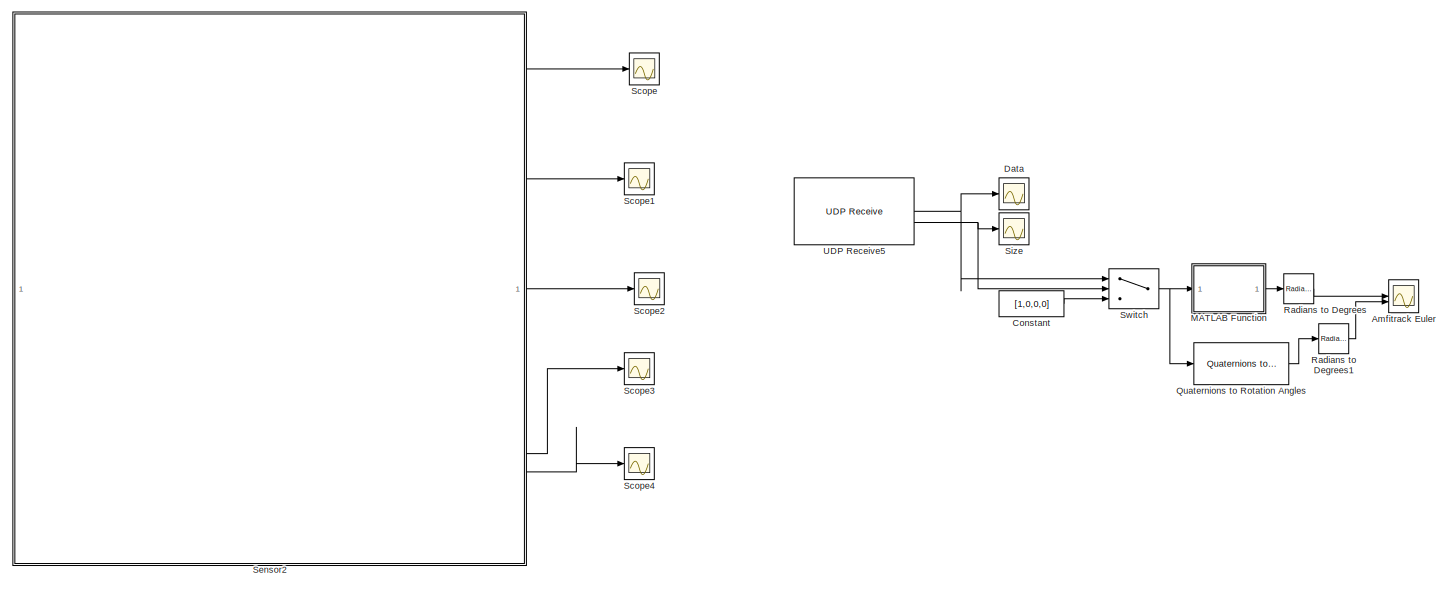
[diagram: root canvas - part 1/2, full width, top band]
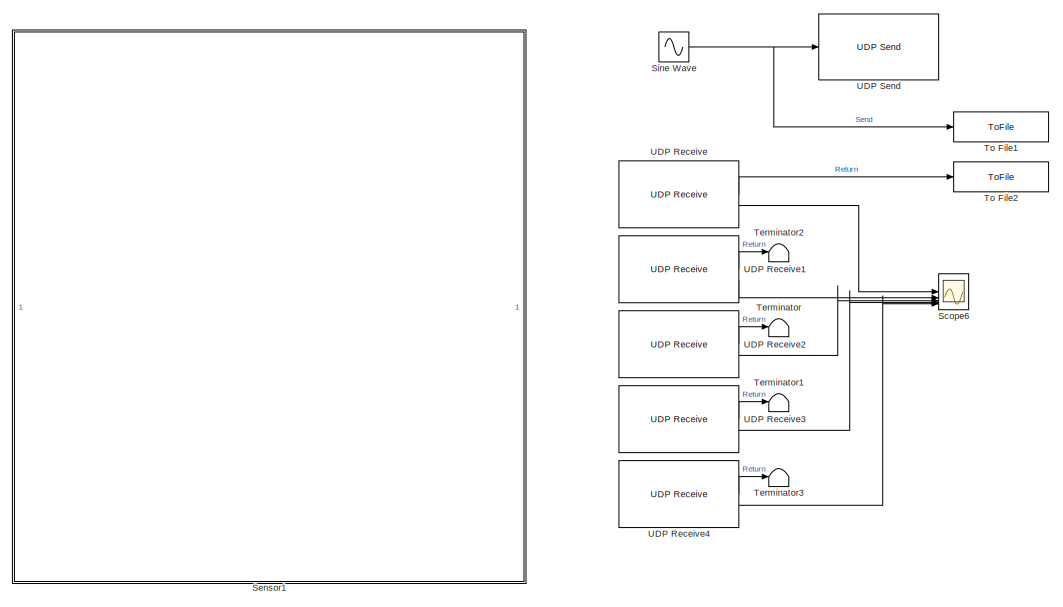
[diagram: root canvas - part 2/2, full width, bottom band]
MODEL slx_ed6cfe903186
KIND model
CONFIG AbsTol = auto
CONFIG EnableMultiTasking = on
CONFIG FixedStep = auto
CONFIG MaxStep = auto
CONFIG MinStep = auto
CONFIG RelTol = 1e-3
CONFIG SampleTimeConstraint = Unconstrained
CONFIG SolverName = FixedStepAuto
CONFIG StartTime = 0.0
CONFIG StopTime = inf
BLOCK [Scope] Amfitrack Euler
  Floating = off
  NumInputPorts = 2
  ScopeSpecificationString = Simulink.scopes.TimeScopeBlockCfg('CurrentConfiguration', extmgr.ConfigurationSet(extmgr.Configuration('Core','General UI',true),extmgr.Configuration('Core','Source UI',true),extmgr.Configuration('Sources','WiredSimulink',true,'DataLoggingVariableName','ScopeData3'),extmgr.Configuration('Visuals','Time Domain',true,'SerializedDisplays',{struct('MinYLimReal','-14.45858','MaxYLimReal','113.36569','Y...<+1786ch>
BLOCK [Constant] Constant
  Value = [1,0,0,0]
BLOCK [Scope] Data
  Floating = off
  NumInputPorts = 1
  ScopeSpecificationString = Simulink.scopes.TimeScopeBlockCfg('CurrentConfiguration', extmgr.ConfigurationSet(extmgr.Configuration('Core','General UI',true),extmgr.Configuration('Core','Source UI',true),extmgr.Configuration('Sources','WiredSimulink',true,'DataLoggingVariableName','ScopeData1'),extmgr.Configuration('Visuals','Time Domain',true,'SerializedDisplays',{struct('MinYLimReal','-0.1801','MaxYLimReal','1.01038','YLabe...<+7691ch>
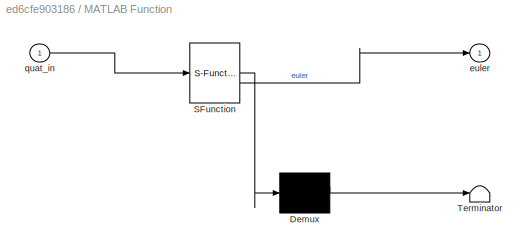
BLOCK [SubSystem] MATLAB Function
  ErrorFcn = Stateflow.Translate.translate
  PermitHierarchicalResolution = ExplicitOnly
  SFBlockType = MATLAB Function
  TreatAsAtomicUnit = on
BLOCK [Demux] MATLAB Function/ Demux 
  Outputs = 1
BLOCK [S-Function] MATLAB Function/ SFunction 
  EnableBusSupport = on
  FunctionName = sf_sfun
  PortCounts = [1 2]
  SFcnIsStateOwnerBlock = off
  SFunctionDeploymentMode = off
  Tag = Stateflow S-Function 16
BLOCK [Terminator] MATLAB Function/ Terminator 
BLOCK [Outport] MATLAB Function/euler
BLOCK [Inport] MATLAB Function/quat_in
BLOCK [Reference] Quaternions to Rotation Angles  REF=sharedtransform/Quaternions to Rotation Angles
  AttributesFormatString = Rotation Order: %<rotationOrder>
  LibrarySourceBlock = aerolibtransform2/Quaternions to Rotation Angles
  SourceBlock = sharedtransform/Quaternions to Rotation Angles
  SourceType = Quat2Ang
BLOCK [Reference] Radians to Degrees  REF=simulink_extras/Transformations/Radians
to Degrees
  SourceBlock = simulink_extras/Transformations/Radians\nto Degrees
  SourceType = RadiansToDegrees
BLOCK [Reference] Radians to Degrees1  REF=simulink_extras/Transformations/Radians
to Degrees
  SourceBlock = simulink_extras/Transformations/Radians\nto Degrees
  SourceType = RadiansToDegrees
BLOCK [Scope] Scope
  Commented = on
  Floating = off
  NumInputPorts = 1
  ScopeSpecificationString = Simulink.scopes.TimeScopeBlockCfg('CurrentConfiguration', extmgr.ConfigurationSet(extmgr.Configuration('Core','General UI',true),extmgr.Configuration('Core','Source UI',true),extmgr.Configuration('Sources','WiredSimulink',true),extmgr.Configuration('Visuals','Time Domain',true,'SerializedDisplays',{struct('MinYLimReal','-11.00000','MaxYLimReal','99.00000','YLabelReal','','MinYLimMag','0.00000','Ma...<+1493ch>
BLOCK [Scope] Scope1
  Commented = on
  Floating = off
  NumInputPorts = 1
  ScopeSpecificationString = Simulink.scopes.TimeScopeBlockCfg('CurrentConfiguration', extmgr.ConfigurationSet(extmgr.Configuration('Core','General UI',true),extmgr.Configuration('Core','Source UI',true),extmgr.Configuration('Sources','WiredSimulink',true,'DataLoggingVariableName','ScopeData1'),extmgr.Configuration('Visuals','Time Domain',true,'SerializedDisplays',{struct('MinYLimReal','-11.00000','MaxYLimReal','99.00000','YL...<+1532ch>
BLOCK [Scope] Scope2
  Commented = on
  Floating = off
  NumInputPorts = 1
  ScopeSpecificationString = Simulink.scopes.TimeScopeBlockCfg('CurrentConfiguration', extmgr.ConfigurationSet(extmgr.Configuration('Core','General UI',true),extmgr.Configuration('Core','Source UI',true),extmgr.Configuration('Sources','WiredSimulink',true,'DataLoggingVariableName','ScopeData2'),extmgr.Configuration('Visuals','Time Domain',true,'SerializedDisplays',{struct('MinYLimReal','-11.00000','MaxYLimReal','99.00000','YL...<+1532ch>
BLOCK [Scope] Scope3
  Commented = on
  Floating = off
  NumInputPorts = 1
  ScopeSpecificationString = Simulink.scopes.TimeScopeBlockCfg('CurrentConfiguration', extmgr.ConfigurationSet(extmgr.Configuration('Core','General UI',true),extmgr.Configuration('Core','Source UI',true),extmgr.Configuration('Sources','WiredSimulink',true,'DataLoggingVariableName','ScopeData3'),extmgr.Configuration('Visuals','Time Domain',true,'SerializedDisplays',{struct('MinYLimReal','-11.00000','MaxYLimReal','99.00000','YL...<+1532ch>
BLOCK [Scope] Scope4
  Commented = on
  Floating = off
  NumInputPorts = 1
  ScopeSpecificationString = Simulink.scopes.TimeScopeBlockCfg('CurrentConfiguration', extmgr.ConfigurationSet(extmgr.Configuration('Core','General UI',true),extmgr.Configuration('Core','Source UI',true),extmgr.Configuration('Sources','WiredSimulink',true,'DataLoggingVariableName','ScopeData4'),extmgr.Configuration('Visuals','Time Domain',true,'SerializedDisplays',{struct('MinYLimReal','-11.00000','MaxYLimReal','99.00000','YL...<+1532ch>
BLOCK [Scope] Scope6
  Commented = on
  Floating = off
  NumInputPorts = 5
  ScopeSpecificationString = Simulink.scopes.TimeScopeBlockCfg('CurrentConfiguration', extmgr.ConfigurationSet(extmgr.Configuration('Core','General UI',true),extmgr.Configuration('Core','Source UI',true),extmgr.Configuration('Sources','WiredSimulink',true,'DataLoggingVariableName','ScopeData1'),extmgr.Configuration('Visuals','Time Domain',true,'SerializedDisplays',{struct('MinYLimReal','-0.01513','MaxYLimReal','1.00786','YLab...<+7822ch>
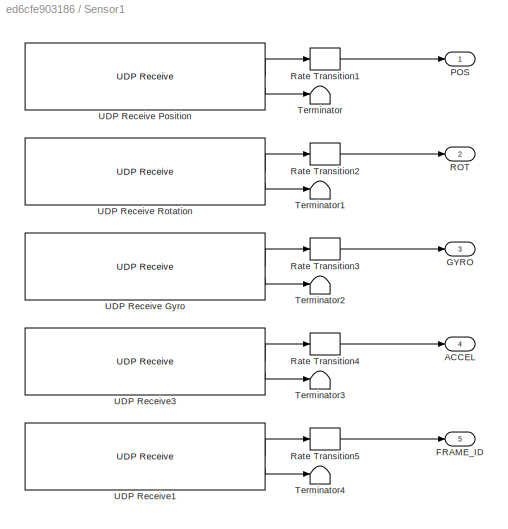
BLOCK [SubSystem] Sensor1
  Commented = on
BLOCK [Outport] Sensor1/ACCEL
  Port = 4
BLOCK [Outport] Sensor1/FRAME_ID
  Port = 5
BLOCK [Outport] Sensor1/GYRO
  Port = 3
BLOCK [Outport] Sensor1/POS
BLOCK [Outport] Sensor1/ROT
  Port = 2
BLOCK [RateTransition] Sensor1/Rate Transition1
  OutPortSampleTime = 0.02
BLOCK [RateTransition] Sensor1/Rate Transition2
  OutPortSampleTime = 0.02
BLOCK [RateTransition] Sensor1/Rate Transition3
  OutPortSampleTime = 0.02
BLOCK [RateTransition] Sensor1/Rate Transition4
  OutPortSampleTime = 0.02
BLOCK [RateTransition] Sensor1/Rate Transition5
  OutPortSampleTime = 0.02
BLOCK [Terminator] Sensor1/Terminator
BLOCK [Terminator] Sensor1/Terminator1
BLOCK [Terminator] Sensor1/Terminator2
BLOCK [Terminator] Sensor1/Terminator3
BLOCK [Terminator] Sensor1/Terminator4
BLOCK [Reference] Sensor1/UDP Receive Gyro  REF=bbblueCommlib/UDP Receive
  SourceBlock = bbblueCommlib/UDP Receive
  SourceType = UDP Receive
BLOCK [Reference] Sensor1/UDP Receive Position  REF=bbblueCommlib/UDP Receive
  SourceBlock = bbblueCommlib/UDP Receive
  SourceType = UDP Receive
BLOCK [Reference] Sensor1/UDP Receive Rotation  REF=bbblueCommlib/UDP Receive
  SourceBlock = bbblueCommlib/UDP Receive
  SourceType = UDP Receive
BLOCK [Reference] Sensor1/UDP Receive1  REF=bbblueCommlib/UDP Receive
  SourceBlock = bbblueCommlib/UDP Receive
  SourceType = UDP Receive
BLOCK [Reference] Sensor1/UDP Receive3  REF=bbblueCommlib/UDP Receive
  SourceBlock = bbblueCommlib/UDP Receive
  SourceType = UDP Receive
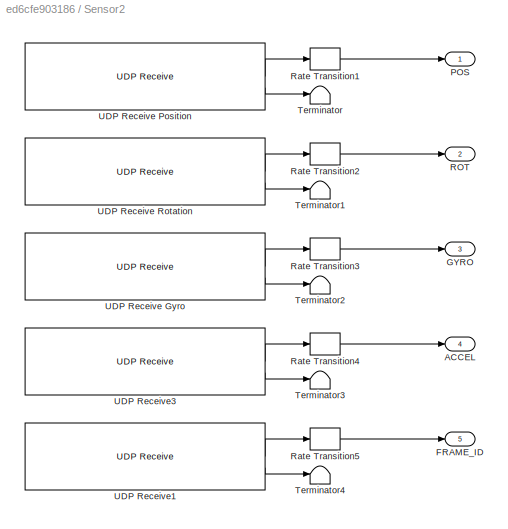
BLOCK [SubSystem] Sensor2
  Commented = on
BLOCK [Outport] Sensor2/ACCEL
  Port = 4
BLOCK [Outport] Sensor2/FRAME_ID
  Port = 5
BLOCK [Outport] Sensor2/GYRO
  Port = 3
BLOCK [Outport] Sensor2/POS
BLOCK [Outport] Sensor2/ROT
  Port = 2
BLOCK [RateTransition] Sensor2/Rate Transition1
  OutPortSampleTime = 0.02
BLOCK [RateTransition] Sensor2/Rate Transition2
  OutPortSampleTime = 0.02
BLOCK [RateTransition] Sensor2/Rate Transition3
  OutPortSampleTime = 0.02
BLOCK [RateTransition] Sensor2/Rate Transition4
  OutPortSampleTime = 0.02
BLOCK [RateTransition] Sensor2/Rate Transition5
  OutPortSampleTime = 0.02
BLOCK [Terminator] Sensor2/Terminator
BLOCK [Terminator] Sensor2/Terminator1
BLOCK [Terminator] Sensor2/Terminator2
BLOCK [Terminator] Sensor2/Terminator3
BLOCK [Terminator] Sensor2/Terminator4
BLOCK [Reference] Sensor2/UDP Receive Gyro  REF=bbblueCommlib/UDP Receive
  SourceBlock = bbblueCommlib/UDP Receive
  SourceType = UDP Receive
BLOCK [Reference] Sensor2/UDP Receive Position  REF=bbblueCommlib/UDP Receive
  SourceBlock = bbblueCommlib/UDP Receive
  SourceType = UDP Receive
BLOCK [Reference] Sensor2/UDP Receive Rotation  REF=bbblueCommlib/UDP Receive
  SourceBlock = bbblueCommlib/UDP Receive
  SourceType = UDP Receive
BLOCK [Reference] Sensor2/UDP Receive1  REF=bbblueCommlib/UDP Receive
  SourceBlock = bbblueCommlib/UDP Receive
  SourceType = UDP Receive
BLOCK [Reference] Sensor2/UDP Receive3  REF=bbblueCommlib/UDP Receive
  SourceBlock = bbblueCommlib/UDP Receive
  SourceType = UDP Receive
BLOCK [Sin] Sine Wave
  Amplitude = 50
  Commented = on
  SampleTime = 0.1
BLOCK [Scope] Size
  Floating = off
  NumInputPorts = 1
  ScopeSpecificationString = Simulink.scopes.TimeScopeBlockCfg('CurrentConfiguration', extmgr.ConfigurationSet(extmgr.Configuration('Core','General UI',true),extmgr.Configuration('Core','Source UI',true),extmgr.Configuration('Sources','WiredSimulink',true,'DataLoggingVariableName','ScopeData2'),extmgr.Configuration('Visuals','Time Domain',true,'SerializedDisplays',{struct('MinYLimReal','3.00000','MaxYLimReal','5.00000','YLabe...<+1518ch>
BLOCK [Switch] Switch
  InputSameDT = off
  SaturateOnIntegerOverflow = off
  Threshold = 4
BLOCK [Terminator] Terminator
  Commented = on
BLOCK [Terminator] Terminator1
  Commented = on
BLOCK [Terminator] Terminator2
  Commented = on
BLOCK [Terminator] Terminator3
  Commented = on
BLOCK [ToFile] To File1
  Commented = on
  Filename = udp_send_newlog1_01.mat
BLOCK [ToFile] To File2
  Commented = on
  Filename = udp_recieve_newlog1_0001.mat
BLOCK [Reference] UDP Receive  REF=bbblueCommlib/UDP Receive
  Commented = on
  SourceBlock = bbblueCommlib/UDP Receive
  SourceType = UDP Receive
BLOCK [Reference] UDP Receive1  REF=bbblueCommlib/UDP Receive
  Commented = on
  SourceBlock = bbblueCommlib/UDP Receive
  SourceType = UDP Receive
BLOCK [Reference] UDP Receive2  REF=bbblueCommlib/UDP Receive
  Commented = on
  SourceBlock = bbblueCommlib/UDP Receive
  SourceType = UDP Receive
BLOCK [Reference] UDP Receive3  REF=bbblueCommlib/UDP Receive
  Commented = on
  SourceBlock = bbblueCommlib/UDP Receive
  SourceType = UDP Receive
BLOCK [Reference] UDP Receive4  REF=bbblueCommlib/UDP Receive
  Commented = on
  SourceBlock = bbblueCommlib/UDP Receive
  SourceType = UDP Receive
BLOCK [Reference] UDP Receive5  REF=bbblueCommlib/UDP Receive
  SourceBlock = bbblueCommlib/UDP Receive
  SourceType = UDP Receive
BLOCK [Reference] UDP Send  REF=bbblueCommlib/UDP Send
  Commented = on
  SourceBlock = bbblueCommlib/UDP Send
  SourceType = UDP Send
LINE Constant:1 -> Switch:3
LINE MATLAB Function:1 -> Radians to Degrees:1
LINE Quaternions to Rotation Angles:1 -> Radians to Degrees1:1
LINE Radians to Degrees1:1 -> Amfitrack Euler:2
LINE Radians to Degrees:1 -> Amfitrack Euler:1
LINE Sensor1/Rate Transition1:1 -> Sensor1/POS:1
LINE Sensor1/Rate Transition2:1 -> Sensor1/ROT:1
LINE Sensor1/Rate Transition3:1 -> Sensor1/GYRO:1
LINE Sensor1/Rate Transition4:1 -> Sensor1/ACCEL:1
LINE Sensor1/Rate Transition5:1 -> Sensor1/FRAME_ID:1
LINE Sensor1/UDP Receive Gyro:1 -> Sensor1/Rate Transition3:1
LINE Sensor1/UDP Receive Gyro:2 -> Sensor1/Terminator2:1
LINE Sensor1/UDP Receive Position:1 -> Sensor1/Rate Transition1:1
LINE Sensor1/UDP Receive Position:2 -> Sensor1/Terminator:1
LINE Sensor1/UDP Receive Rotation:1 -> Sensor1/Rate Transition2:1
LINE Sensor1/UDP Receive Rotation:2 -> Sensor1/Terminator1:1
LINE Sensor1/UDP Receive1:1 -> Sensor1/Rate Transition5:1
LINE Sensor1/UDP Receive1:2 -> Sensor1/Terminator4:1
LINE Sensor1/UDP Receive3:1 -> Sensor1/Rate Transition4:1
LINE Sensor1/UDP Receive3:2 -> Sensor1/Terminator3:1
LINE Sensor2/Rate Transition1:1 -> Sensor2/POS:1
LINE Sensor2/Rate Transition2:1 -> Sensor2/ROT:1
LINE Sensor2/Rate Transition3:1 -> Sensor2/GYRO:1
LINE Sensor2/Rate Transition4:1 -> Sensor2/ACCEL:1
LINE Sensor2/Rate Transition5:1 -> Sensor2/FRAME_ID:1
LINE Sensor2/UDP Receive Gyro:1 -> Sensor2/Rate Transition3:1
LINE Sensor2/UDP Receive Gyro:2 -> Sensor2/Terminator2:1
LINE Sensor2/UDP Receive Position:1 -> Sensor2/Rate Transition1:1
LINE Sensor2/UDP Receive Position:2 -> Sensor2/Terminator:1
LINE Sensor2/UDP Receive Rotation:1 -> Sensor2/Rate Transition2:1
LINE Sensor2/UDP Receive Rotation:2 -> Sensor2/Terminator1:1
LINE Sensor2/UDP Receive1:1 -> Sensor2/Rate Transition5:1
LINE Sensor2/UDP Receive1:2 -> Sensor2/Terminator4:1
LINE Sensor2/UDP Receive3:1 -> Sensor2/Rate Transition4:1
LINE Sensor2/UDP Receive3:2 -> Sensor2/Terminator3:1
LINE Sensor2:1 -> Scope:1
LINE Sensor2:2 -> Scope1:1
LINE Sensor2:3 -> Scope2:1
LINE Sensor2:4 -> Scope3:1
LINE Sensor2:5 -> Scope4:1
NET Sine Wave:1 -> To File1:1, UDP Send:1
NET Switch:1 -> MATLAB Function:1, Quaternions to Rotation Angles:1
LINE UDP Receive1:1 -> Terminator2:1
LINE UDP Receive1:2 -> Scope6:2
LINE UDP Receive2:1 -> Terminator:1
LINE UDP Receive2:2 -> Scope6:3
LINE UDP Receive3:1 -> Terminator1:1
LINE UDP Receive3:2 -> Scope6:4
LINE UDP Receive4:1 -> Terminator3:1
LINE UDP Receive4:2 -> Scope6:5
NET UDP Receive5:1 -> Data:1, Switch:1
NET UDP Receive5:2 -> Size:1, Switch:2
LINE UDP Receive:1 -> To File2:1
LINE UDP Receive:2 -> Scope6:1
note: NET lines group one-source signal fan-out (src -> all destinations, sorted); 1:1 wires keep LINE
CHART MATLAB Function states=1 transitions=1
  STATE_LABEL 'eML_blk_kernel()'
  STATE_LABEL 'SCRIPT:\nfunction euler = to_euler(quat_in)\n\nq0 = quat_in(1);\nq1 = quat_in(2);\nq2 = quat_in(3);\nq3 = quat_in(4);\n\nroll = atan((2 * (q0*q1 + q2*q3))/(1 - 2*(q1^2 + q2^2)));\npitch = asin(2 * (q0*q2 - q1*q3));\nyaw = atan2((2 * (q0*q3 + q1*q2)),(1 - 2*(q2^2 + q3^2)));\n\neuler = [roll; pitch; yaw];\n\n\n'
CHART  states=0 transitions=0
